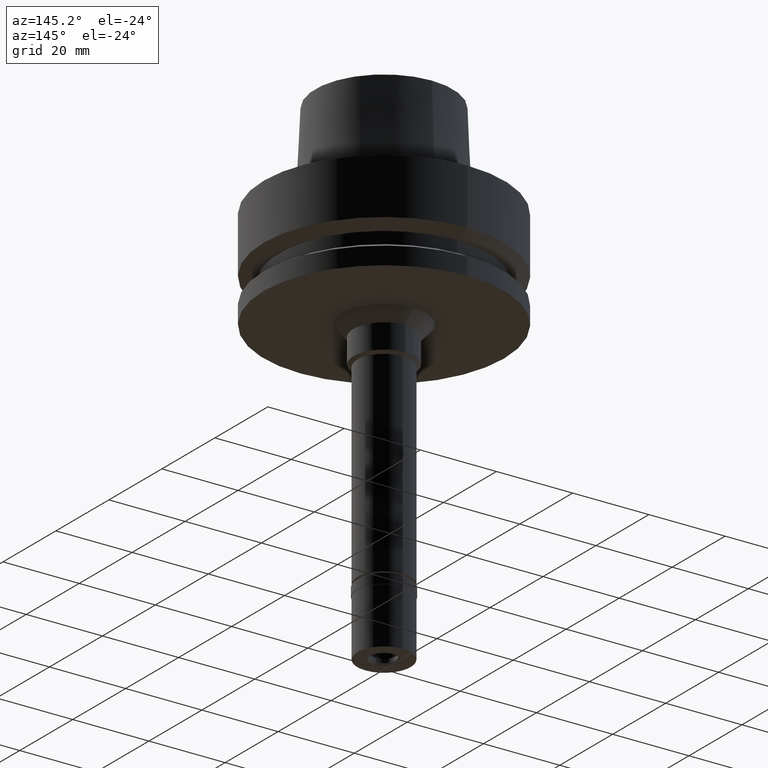
[diagram: clean part render]
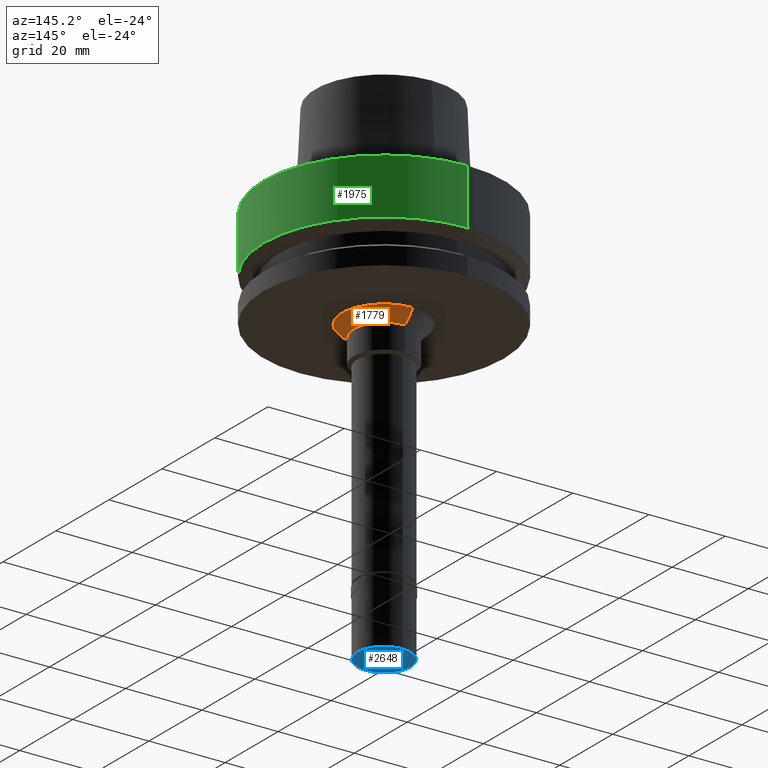
[diagram: same view with three faces highlighted in distinct colors, each labeled with its STEP entity id]
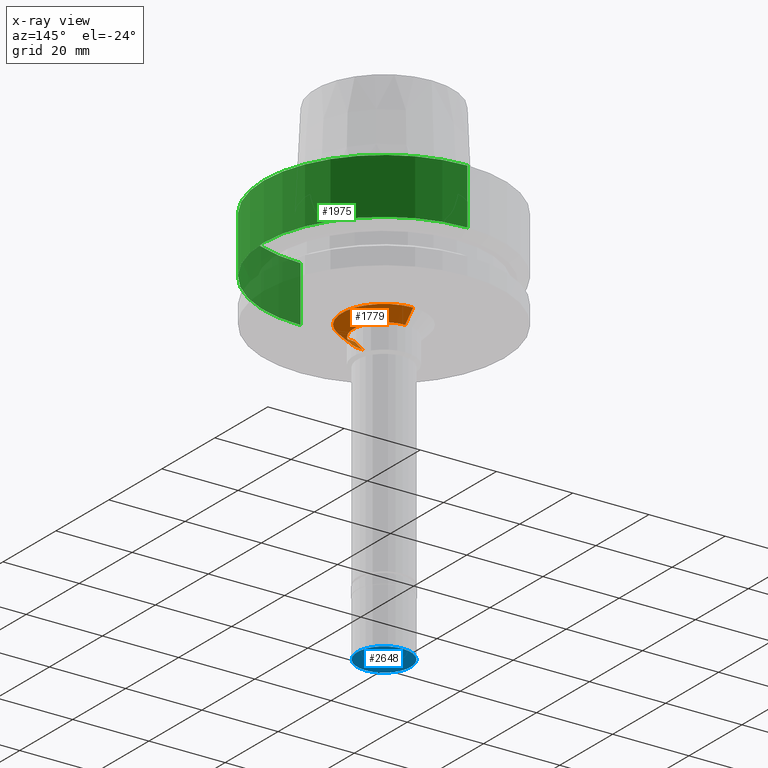
[diagram: x-ray of the same camera — body ghosted, the three highlighted faces saturated]
A machine part, auxiliary view with three faces highlighted in distinct colors.
The next image is the same camera in x-ray (body ghosted, the three faces saturated) — at least one of them is partly hidden behind the body in this view.
Their STEP definitions:

[orange] entity #1779 — the highlighted conical surface has half-angle 45 deg.
#102 = CARTESIAN_POINT ( 'NONE',  ( 0.0000000000000000000, -11.00000000000000000, -26.00000000000000000 ) ) ;
#115 = DIRECTION ( 'NONE',  ( 0.0000000000000000000, -0.7071067811865474617, -0.7071067811865474617 ) ) ;
#148 = DIRECTION ( 'NONE',  ( 0.0000000000000000000, 0.7071067811865474617, -0.7071067811865474617 ) ) ;
#261 = ORIENTED_EDGE ( 'NONE', *, *, #1872, .F. ) ;
#348 = AXIS2_PLACEMENT_3D ( 'NONE', #2097, #1654, #1868 ) ;
#367 = EDGE_LOOP ( 'NONE', ( #1243, #2652, #2784, #261 ) ) ;
#508 = VERTEX_POINT ( 'NONE', #2545 ) ;
#570 = LINE ( 'NONE', #102, #2161 ) ;
#572 = CIRCLE ( 'NONE', #2469, 8.000000000000000000 ) ;
#720 = CARTESIAN_POINT ( 'NONE',  ( 0.0000000000000000000, -11.00000000000000000, -26.00000000000000000 ) ) ;
#845 = CONICAL_SURFACE ( 'NONE', #348, 9.500000000000000000, 0.7853981633972997312 ) ;
#903 = VERTEX_POINT ( 'NONE', #1607 ) ;
#1051 = EDGE_CURVE ( 'NONE', #2365, #903, #572, .T. ) ;
#1111 = VECTOR ( 'NONE', #115, 1000.000000000000114 ) ;
#1205 = FACE_OUTER_BOUND ( 'NONE', #367, .T. ) ;
#1239 = CARTESIAN_POINT ( 'NONE',  ( 0.0000000000000000000, 11.00000000000000000, -26.00000000000000000 ) ) ;
#1243 = ORIENTED_EDGE ( 'NONE', *, *, #2579, .T. ) ;
#1405 = LINE ( 'NONE', #1239, #1111 ) ;
#1530 = DIRECTION ( 'NONE',  ( 0.0000000000000000000, 0.0000000000000000000, -1.000000000000000000 ) ) ;
#1607 = CARTESIAN_POINT ( 'NONE',  ( 0.0000000000000000000, -8.000000000000000000, -29.00000000000000000 ) ) ;
#1654 = DIRECTION ( 'NONE',  ( 0.0000000000000000000, 0.0000000000000000000, 1.000000000000000000 ) ) ;
#1779 = ADVANCED_FACE ( 'NONE', ( #1205 ), #845, .T. ) ;
#1868 = DIRECTION ( 'NONE',  ( 0.0000000000000000000, 1.000000000000000000, 0.0000000000000000000 ) ) ;
#1872 = EDGE_CURVE ( 'NONE', #508, #2365, #1405, .T. ) ;
#1874 = DIRECTION ( 'NONE',  ( 0.0000000000000000000, 1.000000000000000000, 0.0000000000000000000 ) ) ;
#2056 = VERTEX_POINT ( 'NONE', #720 ) ;
#2091 = CARTESIAN_POINT ( 'NONE',  ( 0.0000000000000000000, 0.0000000000000000000, -26.00000000000000000 ) ) ;
#2097 = CARTESIAN_POINT ( 'NONE',  ( 0.0000000000000000000, 0.0000000000000000000, -27.50000000000000000 ) ) ;
#2161 = VECTOR ( 'NONE', #148, 1000.000000000000114 ) ;
#2288 = CARTESIAN_POINT ( 'NONE',  ( 0.0000000000000000000, 8.000000000000000000, -29.00000000000000000 ) ) ;
#2295 = DIRECTION ( 'NONE',  ( 0.0000000000000000000, 0.0000000000000000000, -1.000000000000000000 ) ) ;
#2303 = CIRCLE ( 'NONE', #2618, 11.00000000000000000 ) ;
#2365 = VERTEX_POINT ( 'NONE', #2288 ) ;
#2401 = DIRECTION ( 'NONE',  ( 0.0000000000000000000, 1.000000000000000000, 0.0000000000000000000 ) ) ;
#2469 = AXIS2_PLACEMENT_3D ( 'NONE', #2594, #1530, #2401 ) ;
#2504 = EDGE_CURVE ( 'NONE', #2056, #903, #570, .T. ) ;
#2545 = CARTESIAN_POINT ( 'NONE',  ( 0.0000000000000000000, 11.00000000000000000, -26.00000000000000000 ) ) ;
#2579 = EDGE_CURVE ( 'NONE', #508, #2056, #2303, .T. ) ;
#2594 = CARTESIAN_POINT ( 'NONE',  ( 0.0000000000000000000, 0.0000000000000000000, -29.00000000000000000 ) ) ;
#2618 = AXIS2_PLACEMENT_3D ( 'NONE', #2091, #2295, #1874 ) ;
#2652 = ORIENTED_EDGE ( 'NONE', *, *, #2504, .T. ) ;
#2784 = ORIENTED_EDGE ( 'NONE', *, *, #1051, .F. ) ;

[blue] entity #2648 — the highlighted planar face has unit normal (0, 0, 1).
#126 = DIRECTION ( 'NONE',  ( 0.0000000000000000000, 0.0000000000000000000, 1.000000000000000000 ) ) ;
#187 = ORIENTED_EDGE ( 'NONE', *, *, #872, .F. ) ;
#188 = FACE_BOUND ( 'NONE', #2467, .T. ) ;
#237 = EDGE_CURVE ( 'NONE', #2381, #2356, #2333, .T. ) ;
#248 = CIRCLE ( 'NONE', #2192, 3.550000000000000266 ) ;
#327 = DIRECTION ( 'NONE',  ( 0.0000000000000000000, 0.0000000000000000000, -1.000000000000000000 ) ) ;
#338 = DIRECTION ( 'NONE',  ( 0.0000000000000000000, 0.0000000000000000000, 1.000000000000000000 ) ) ;
#518 = DIRECTION ( 'NONE',  ( 0.0000000000000000000, 1.000000000000000000, 0.0000000000000000000 ) ) ;
#566 = CARTESIAN_POINT ( 'NONE',  ( 0.0000000000000000000, -3.550000000000000266, -17.00000000000000000 ) ) ;
#583 = AXIS2_PLACEMENT_3D ( 'NONE', #1863, #126, #1245 ) ;
#648 = AXIS2_PLACEMENT_3D ( 'NONE', #1156, #338, #1175 ) ;
#757 = PLANE ( 'NONE',  #583 ) ;
#776 = CARTESIAN_POINT ( 'NONE',  ( 0.0000000000000000000, 0.0000000000000000000, -17.00000000000000000 ) ) ;
#867 = ORIENTED_EDGE ( 'NONE', *, *, #2403, .F. ) ;
#872 = EDGE_CURVE ( 'NONE', #1194, #885, #248, .T. ) ;
#882 = ORIENTED_EDGE ( 'NONE', *, *, #2093, .F. ) ;
#885 = VERTEX_POINT ( 'NONE', #1185 ) ;
#958 = CARTESIAN_POINT ( 'NONE',  ( 0.0000000000000000000, 0.0000000000000000000, -17.00000000000000000 ) ) ;
#990 = DIRECTION ( 'NONE',  ( 0.0000000000000000000, -1.000000000000000000, 0.0000000000000000000 ) ) ;
#999 = CARTESIAN_POINT ( 'NONE',  ( 0.0000000000000000000, 7.000000000000000000, -17.00000000000000000 ) ) ;
#1156 = CARTESIAN_POINT ( 'NONE',  ( 0.0000000000000000000, 0.0000000000000000000, -17.00000000000000000 ) ) ;
#1160 = DIRECTION ( 'NONE',  ( 0.0000000000000000000, 1.000000000000000000, 0.0000000000000000000 ) ) ;
#1175 = DIRECTION ( 'NONE',  ( 0.0000000000000000000, -1.000000000000000000, 0.0000000000000000000 ) ) ;
#1185 = CARTESIAN_POINT ( 'NONE',  ( 0.0000000000000000000, 3.550000000000000266, -17.00000000000000000 ) ) ;
#1194 = VERTEX_POINT ( 'NONE', #566 ) ;
#1210 = AXIS2_PLACEMENT_3D ( 'NONE', #958, #1219, #518 ) ;
#1219 = DIRECTION ( 'NONE',  ( 0.0000000000000000000, 0.0000000000000000000, -1.000000000000000000 ) ) ;
#1245 = DIRECTION ( 'NONE',  ( 1.000000000000000000, 0.0000000000000000000, 0.0000000000000000000 ) ) ;
#1361 = DIRECTION ( 'NONE',  ( 0.0000000000000000000, 0.0000000000000000000, 1.000000000000000000 ) ) ;
#1411 = FACE_OUTER_BOUND ( 'NONE', #1782, .T. ) ;
#1718 = ORIENTED_EDGE ( 'NONE', *, *, #237, .F. ) ;
#1782 = EDGE_LOOP ( 'NONE', ( #867, #1718 ) ) ;
#1863 = CARTESIAN_POINT ( 'NONE',  ( 0.0000000000000000000, 0.0000000000000000000, -17.00000000000000000 ) ) ;
#1869 = CARTESIAN_POINT ( 'NONE',  ( 0.0000000000000000000, -7.000000000000000000, -17.00000000000000000 ) ) ;
#2019 = CIRCLE ( 'NONE', #2386, 7.000000000000000000 ) ;
#2093 = EDGE_CURVE ( 'NONE', #885, #1194, #2383, .T. ) ;
#2192 = AXIS2_PLACEMENT_3D ( 'NONE', #776, #327, #990 ) ;
#2333 = CIRCLE ( 'NONE', #648, 7.000000000000000000 ) ;
#2356 = VERTEX_POINT ( 'NONE', #999 ) ;
#2381 = VERTEX_POINT ( 'NONE', #1869 ) ;
#2383 = CIRCLE ( 'NONE', #1210, 3.550000000000000266 ) ;
#2386 = AXIS2_PLACEMENT_3D ( 'NONE', #2408, #1361, #1160 ) ;
#2403 = EDGE_CURVE ( 'NONE', #2356, #2381, #2019, .T. ) ;
#2408 = CARTESIAN_POINT ( 'NONE',  ( 0.0000000000000000000, 0.0000000000000000000, -17.00000000000000000 ) ) ;
#2467 = EDGE_LOOP ( 'NONE', ( #882, #187 ) ) ;
#2648 = ADVANCED_FACE ( 'NONE', ( #1411, #188 ), #757, .F. ) ;

[green] entity #1975 — the highlighted cylindrical surface (partial cylindrical patch) has radius 31.5 mm, axis along (0, 0, 1).
#48 = EDGE_CURVE ( 'NONE', #1380, #2397, #1424, .T. ) ;
#49 = ORIENTED_EDGE ( 'NONE', *, *, #48, .T. ) ;
#77 = AXIS2_PLACEMENT_3D ( 'NONE', #192, #1722, #1908 ) ;
#146 = CARTESIAN_POINT ( 'NONE',  ( 0.0000000000000000000, -31.50000000000000000, 1.042129345780999972E-13 ) ) ;
#179 = EDGE_CURVE ( 'NONE', #1093, #2693, #1331, .T. ) ;
#192 = CARTESIAN_POINT ( 'NONE',  ( 0.0000000000000000000, 0.0000000000000000000, -107.3000000000000114 ) ) ;
#205 = AXIS2_PLACEMENT_3D ( 'NONE', #1304, #2166, #462 ) ;
#240 = CARTESIAN_POINT ( 'NONE',  ( 0.0000000000000000000, 0.0000000000000000000, 1.705302565823999875E-13 ) ) ;
#243 = ORIENTED_EDGE ( 'NONE', *, *, #1495, .T. ) ;
#356 = DIRECTION ( 'NONE',  ( 0.0000000000000000000, 4.130355870612999632E-14, -1.000000000000000000 ) ) ;
#372 = CARTESIAN_POINT ( 'NONE',  ( 0.0000000000000000000, 31.50000000000000000, 1.042129345780999972E-13 ) ) ;
#386 = DIRECTION ( 'NONE',  ( 0.0000000000000000000, -4.130355870612999632E-14, -1.000000000000000000 ) ) ;
#456 = EDGE_CURVE ( 'NONE', #1093, #2397, #2770, .T. ) ;
#462 = DIRECTION ( 'NONE',  ( 0.0000000000000000000, -1.000000000000000000, 0.0000000000000000000 ) ) ;
#864 = CYLINDRICAL_SURFACE ( 'NONE', #77, 31.50000000000000000 ) ;
#875 = DIRECTION ( 'NONE',  ( 0.0000000000000000000, 1.000000000000000000, 0.0000000000000000000 ) ) ;
#1083 = CARTESIAN_POINT ( 'NONE',  ( 0.0000000000000000000, 31.50000000000000000, 1.705302565823999875E-13 ) ) ;
#1093 = VERTEX_POINT ( 'NONE', #1083 ) ;
#1099 = CARTESIAN_POINT ( 'NONE',  ( 0.0000000000000000000, 31.50000000000000000, -14.62250092523999889 ) ) ;
#1107 = ORIENTED_EDGE ( 'NONE', *, *, #456, .F. ) ;
#1247 = AXIS2_PLACEMENT_3D ( 'NONE', #240, #1507, #875 ) ;
#1275 = CARTESIAN_POINT ( 'NONE',  ( 0.0000000000000000000, -31.50000000000000000, -14.62250092523999889 ) ) ;
#1304 = CARTESIAN_POINT ( 'NONE',  ( 0.0000000000000000000, 0.0000000000000000000, -14.62250092523999889 ) ) ;
#1331 = CIRCLE ( 'NONE', #1247, 31.50000000000000000 ) ;
#1380 = VERTEX_POINT ( 'NONE', #1275 ) ;
#1424 = CIRCLE ( 'NONE', #205, 31.50000000000000000 ) ;
#1475 = VECTOR ( 'NONE', #386, 1000.000000000000000 ) ;
#1495 = EDGE_CURVE ( 'NONE', #2693, #1380, #2316, .T. ) ;
#1507 = DIRECTION ( 'NONE',  ( 0.0000000000000000000, 0.0000000000000000000, -1.000000000000000000 ) ) ;
#1722 = DIRECTION ( 'NONE',  ( 0.0000000000000000000, 0.0000000000000000000, 1.000000000000000000 ) ) ;
#1861 = EDGE_LOOP ( 'NONE', ( #2622, #243, #49, #1107 ) ) ;
#1908 = DIRECTION ( 'NONE',  ( 0.0000000000000000000, 1.000000000000000000, 0.0000000000000000000 ) ) ;
#1975 = ADVANCED_FACE ( 'NONE', ( #2586 ), #864, .T. ) ;
#2166 = DIRECTION ( 'NONE',  ( 0.0000000000000000000, 0.0000000000000000000, 1.000000000000000000 ) ) ;
#2239 = VECTOR ( 'NONE', #356, 1000.000000000000000 ) ;
#2316 = LINE ( 'NONE', #146, #1475 ) ;
#2397 = VERTEX_POINT ( 'NONE', #1099 ) ;
#2586 = FACE_OUTER_BOUND ( 'NONE', #1861, .T. ) ;
#2622 = ORIENTED_EDGE ( 'NONE', *, *, #179, .T. ) ;
#2693 = VERTEX_POINT ( 'NONE', #2723 ) ;
#2723 = CARTESIAN_POINT ( 'NONE',  ( 0.0000000000000000000, -31.50000000000000000, 1.705302565823999875E-13 ) ) ;
#2770 = LINE ( 'NONE', #372, #2239 ) ;